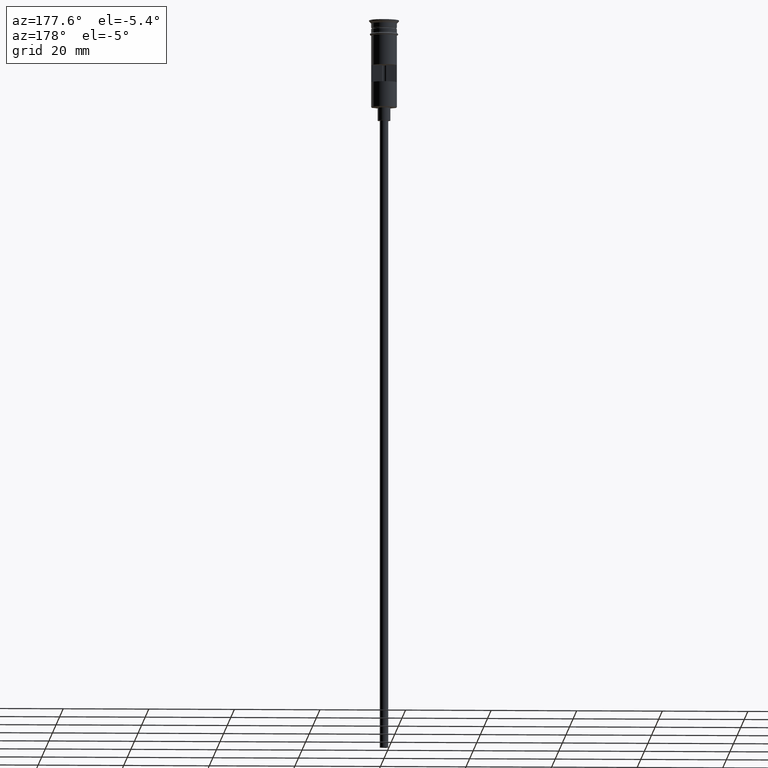
[diagram: clean part render]
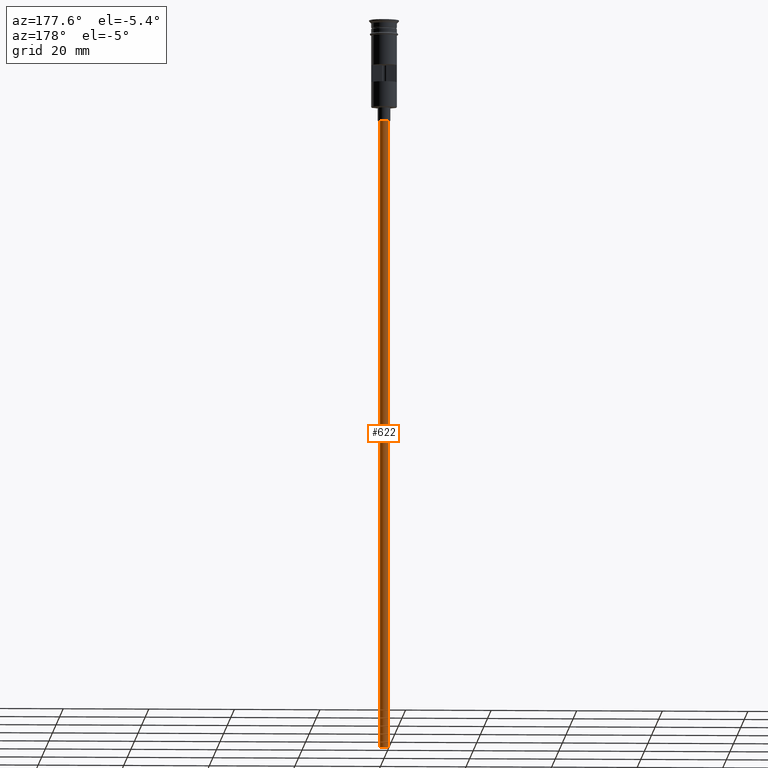
[diagram: same view with one face highlighted and labeled with its STEP entity id]
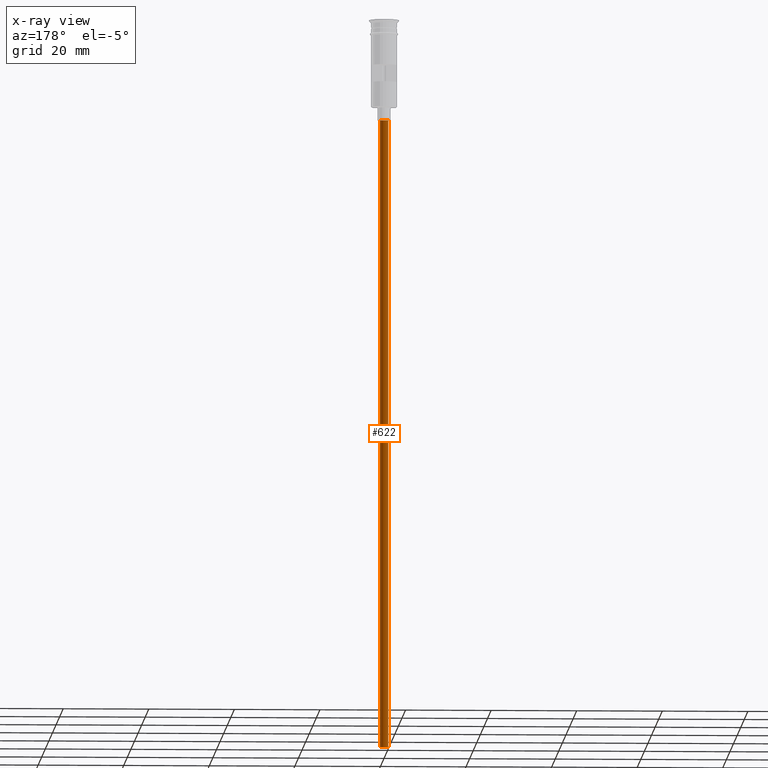
[diagram: x-ray of the same camera — body ghosted, the highlighted face saturated]
A machine part, auxiliary view. The second image highlights one B-rep face of the part: STEP entity #622.
The next image is the same camera in x-ray: the body ghosted, the highlighted face saturated — about 0% of this face is hidden behind the body in this view.
In plain terms, the highlighted cylindrical surface (edge-blend (fillet) strip) has radius 1 mm, axis along (-0, -0, 1).
Its self-contained STEP definition (entity closure, byte-faithful):
#7 = EDGE_LOOP ( 'NONE', ( #625, #968, #1119, #1575 ) ) ;
#31 = CARTESIAN_POINT ( 'NONE',  ( -0.9999999999999997780, 1.224646799147352961E-16, -23.50000000000000000 ) ) ;
#80 = VERTEX_POINT ( 'NONE', #31 ) ;
#98 = DIRECTION ( 'NONE',  ( 1.000000000000000000, 0.000000000000000000, 0.000000000000000000 ) ) ;
#108 = DIRECTION ( 'NONE',  ( -1.000000000000000000, 0.000000000000000000, 0.000000000000000000 ) ) ;
#150 = LINE ( 'NONE', #656, #1326 ) ;
#347 = EDGE_CURVE ( 'NONE', #80, #698, #965, .T. ) ;
#352 = CARTESIAN_POINT ( 'NONE',  ( -0.9999999999999997780, 1.224646799147352961E-16, -170.4999999999999716 ) ) ;
#353 = DIRECTION ( 'NONE',  ( -0.000000000000000000, -0.000000000000000000, 1.000000000000000000 ) ) ;
#359 = DIRECTION ( 'NONE',  ( -0.000000000000000000, -0.000000000000000000, 1.000000000000000000 ) ) ;
#421 = AXIS2_PLACEMENT_3D ( 'NONE', #985, #750, #108 ) ;
#431 = DIRECTION ( 'NONE',  ( -1.000000000000000000, 0.000000000000000000, 0.000000000000000000 ) ) ;
#485 = CARTESIAN_POINT ( 'NONE',  ( 0.9999999999999997780, 0.000000000000000000, -170.4999999999999716 ) ) ;
#621 = LINE ( 'NONE', #1103, #942 ) ;
#622 = ADVANCED_FACE ( 'NONE', ( #1465 ), #1230, .T. ) ;
#625 = ORIENTED_EDGE ( 'NONE', *, *, #1237, .F. ) ;
#656 = CARTESIAN_POINT ( 'NONE',  ( -0.9999999999999997780, 1.224646799147352961E-16, -170.4999999999999716 ) ) ;
#698 = VERTEX_POINT ( 'NONE', #1150 ) ;
#703 = EDGE_CURVE ( 'NONE', #1451, #80, #150, .T. ) ;
#750 = DIRECTION ( 'NONE',  ( 0.000000000000000000, 0.000000000000000000, -1.000000000000000000 ) ) ;
#811 = AXIS2_PLACEMENT_3D ( 'NONE', #1054, #947, #431 ) ;
#902 = DIRECTION ( 'NONE',  ( -0.000000000000000000, -0.000000000000000000, 1.000000000000000000 ) ) ;
#942 = VECTOR ( 'NONE', #359, 1000.000000000000000 ) ;
#947 = DIRECTION ( 'NONE',  ( 0.000000000000000000, 0.000000000000000000, -1.000000000000000000 ) ) ;
#965 = CIRCLE ( 'NONE', #811, 0.9999999999999997780 ) ;
#968 = ORIENTED_EDGE ( 'NONE', *, *, #703, .T. ) ;
#985 = CARTESIAN_POINT ( 'NONE',  ( 0.000000000000000000, 0.000000000000000000, -170.4999999999999716 ) ) ;
#1054 = CARTESIAN_POINT ( 'NONE',  ( 0.000000000000000000, 0.000000000000000000, -23.50000000000000000 ) ) ;
#1103 = CARTESIAN_POINT ( 'NONE',  ( 0.9999999999999997780, 0.000000000000000000, -170.4999999999999716 ) ) ;
#1119 = ORIENTED_EDGE ( 'NONE', *, *, #347, .T. ) ;
#1150 = CARTESIAN_POINT ( 'NONE',  ( 0.9999999999999997780, 0.000000000000000000, -23.50000000000000000 ) ) ;
#1209 = EDGE_CURVE ( 'NONE', #1242, #698, #621, .T. ) ;
#1215 = CARTESIAN_POINT ( 'NONE',  ( 0.000000000000000000, 0.000000000000000000, -170.4999999999999716 ) ) ;
#1230 = CYLINDRICAL_SURFACE ( 'NONE', #1485, 0.9999999999999997780 ) ;
#1237 = EDGE_CURVE ( 'NONE', #1451, #1242, #1352, .T. ) ;
#1242 = VERTEX_POINT ( 'NONE', #485 ) ;
#1326 = VECTOR ( 'NONE', #902, 1000.000000000000000 ) ;
#1352 = CIRCLE ( 'NONE', #421, 0.9999999999999997780 ) ;
#1451 = VERTEX_POINT ( 'NONE', #352 ) ;
#1465 = FACE_OUTER_BOUND ( 'NONE', #7, .T. ) ;
#1485 = AXIS2_PLACEMENT_3D ( 'NONE', #1215, #353, #98 ) ;
#1575 = ORIENTED_EDGE ( 'NONE', *, *, #1209, .F. ) ;